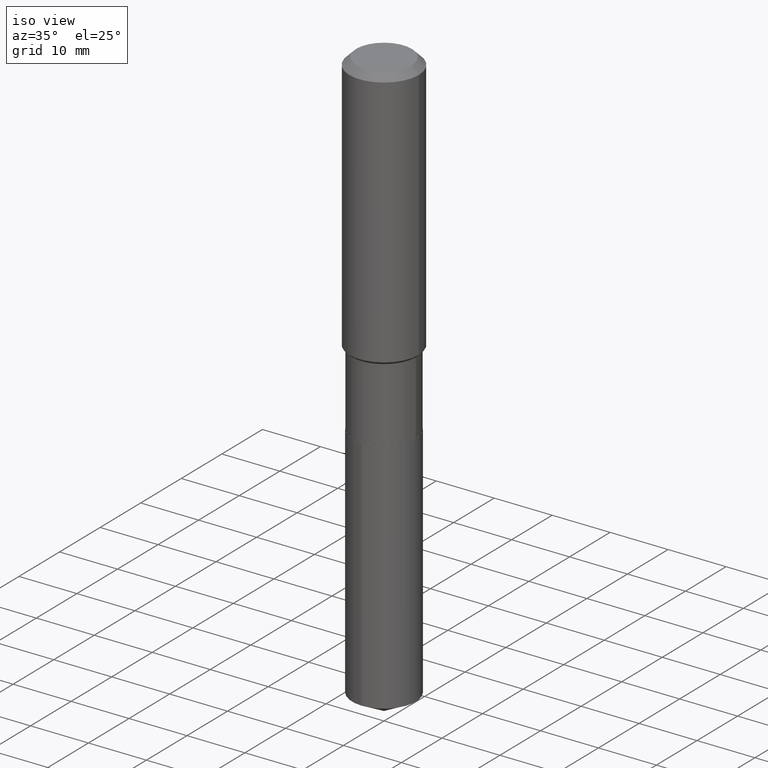
[diagram: clean part render]
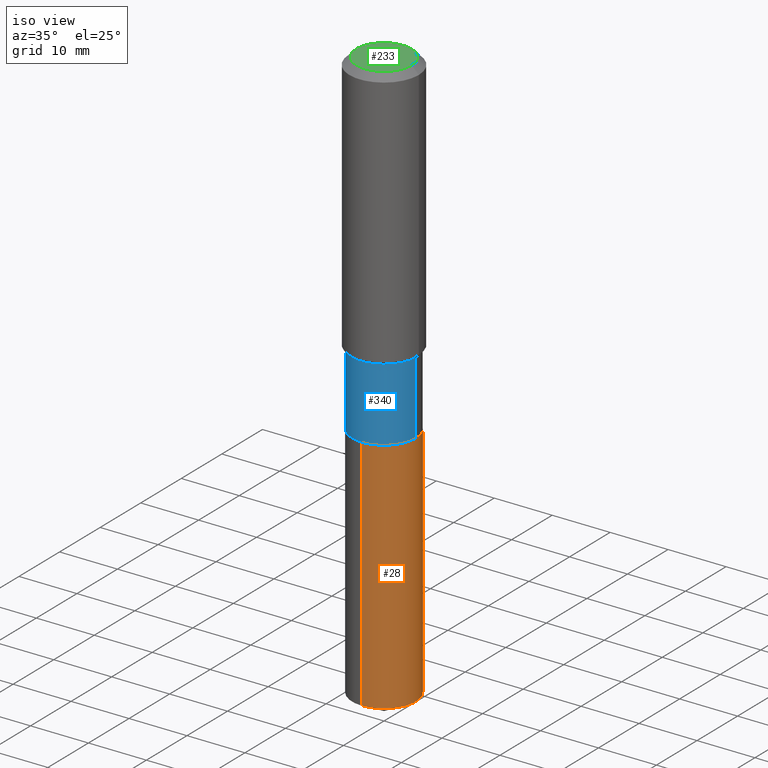
[diagram: same view with three faces highlighted in distinct colors, each labeled with its STEP entity id]
A machine part, iso view with three faces highlighted in distinct colors.
Their STEP definitions:

[orange] entity #28 — the highlighted cylindrical surface (partial cylindrical patch) has radius 5.5004 mm, axis along (-0, 0, 1).
#1 = LINE ( 'NONE', #334, #179 ) ;
#28 = ADVANCED_FACE ( 'NONE', ( #225 ), #273, .T. ) ;
#34 = ORIENTED_EDGE ( 'NONE', *, *, #190, .F. ) ;
#39 = VERTEX_POINT ( 'NONE', #91 ) ;
#46 = DIRECTION ( 'NONE',  ( -2.445558120015569435E-29, 3.491353436354538463E-15, 1.000000000000000000 ) ) ;
#61 = DIRECTION ( 'NONE',  ( -6.982962677686265133E-15, -1.000000000000000000, 2.523064413451178124E-15 ) ) ;
#79 = ORIENTED_EDGE ( 'NONE', *, *, #427, .F. ) ;
#87 = CARTESIAN_POINT ( 'NONE',  ( 5.583983472043140562E-29, -7.972448489114438042E-15, -2.283399999999999874 ) ) ;
#91 = CARTESIAN_POINT ( 'NONE',  ( -1.512160567852865370E-15, -0.2165500000000135927, -3.900558322573707493 ) ) ;
#99 = DIRECTION ( 'NONE',  ( -6.982962677686265133E-15, -1.000000000000000000, 3.784596620176766988E-15 ) ) ;
#131 = CARTESIAN_POINT ( 'NONE',  ( 9.538838139164029954E-29, -1.361851975576149405E-14, -3.900558322573707937 ) ) ;
#135 = CARTESIAN_POINT ( 'NONE',  ( 5.583983472043140562E-29, -7.972448489114438042E-15, -2.283399999999999874 ) ) ;
#139 = VERTEX_POINT ( 'NONE', #222 ) ;
#149 = VERTEX_POINT ( 'NONE', #360 ) ;
#162 = EDGE_CURVE ( 'NONE', #39, #139, #242, .T. ) ;
#174 = DIRECTION ( 'NONE',  ( -2.445558120015569435E-29, 3.491353436354538463E-15, 1.000000000000000000 ) ) ;
#179 = VECTOR ( 'NONE', #184, 39.37007874015748143 ) ;
#182 = EDGE_CURVE ( 'NONE', #139, #299, #474, .T. ) ;
#184 = DIRECTION ( 'NONE',  ( -2.445558120015569435E-29, 3.491353436354538463E-15, 1.000000000000000000 ) ) ;
#190 = EDGE_CURVE ( 'NONE', #149, #299, #453, .T. ) ;
#207 = DIRECTION ( 'NONE',  ( -6.982962677686265133E-15, -1.000000000000000000, 3.784596620176766988E-15 ) ) ;
#222 = CARTESIAN_POINT ( 'NONE',  ( 1.538680294288591957E-15, 0.2165499999999863368, -3.900558322573708381 ) ) ;
#225 = FACE_OUTER_BOUND ( 'NONE', #337, .T. ) ;
#235 = AXIS2_PLACEMENT_3D ( 'NONE', #135, #471, #99 ) ;
#242 = CIRCLE ( 'NONE', #370, 0.2165500000000000203 ) ;
#253 = CARTESIAN_POINT ( 'NONE',  ( 1.538680294288552514E-15, 0.2165499999999920544, -2.283400000000000762 ) ) ;
#260 = CARTESIAN_POINT ( 'NONE',  ( 1.538680294288592549E-15, 0.2165499999999920544, -2.283400000000000762 ) ) ;
#273 = CYLINDRICAL_SURFACE ( 'NONE', #485, 0.2165500000000000203 ) ;
#299 = VERTEX_POINT ( 'NONE', #260 ) ;
#323 = ORIENTED_EDGE ( 'NONE', *, *, #182, .T. ) ;
#334 = CARTESIAN_POINT ( 'NONE',  ( -1.512160567852905011E-15, -0.2165500000000079583, -2.283399999999998986 ) ) ;
#335 = VECTOR ( 'NONE', #174, 39.37007874015748143 ) ;
#337 = EDGE_LOOP ( 'NONE', ( #472, #323, #34, #79 ) ) ;
#360 = CARTESIAN_POINT ( 'NONE',  ( -1.512160567852905011E-15, -0.2165500000000079583, -2.283399999999998986 ) ) ;
#370 = AXIS2_PLACEMENT_3D ( 'NONE', #131, #438, #61 ) ;
#427 = EDGE_CURVE ( 'NONE', #39, #149, #1, .T. ) ;
#438 = DIRECTION ( 'NONE',  ( -2.445558120015569435E-29, 3.491353436354538463E-15, 1.000000000000000000 ) ) ;
#453 = CIRCLE ( 'NONE', #235, 0.2165500000000000203 ) ;
#471 = DIRECTION ( 'NONE',  ( -2.445558120015569435E-29, 3.491353436354538463E-15, 1.000000000000000000 ) ) ;
#472 = ORIENTED_EDGE ( 'NONE', *, *, #162, .T. ) ;
#474 = LINE ( 'NONE', #253, #335 ) ;
#485 = AXIS2_PLACEMENT_3D ( 'NONE', #87, #46, #207 ) ;

[blue] entity #340 — the highlighted cylindrical surface (partial cylindrical patch) has radius 5.5004 mm, axis along (-0, 0, 1).
#6 = CYLINDRICAL_SURFACE ( 'NONE', #468, 0.2165499999999999647 ) ;
#20 = VERTEX_POINT ( 'NONE', #115 ) ;
#29 = LINE ( 'NONE', #150, #60 ) ;
#41 = FACE_OUTER_BOUND ( 'NONE', #289, .T. ) ;
#42 = ORIENTED_EDGE ( 'NONE', *, *, #83, .T. ) ;
#57 = CARTESIAN_POINT ( 'NONE',  ( 0.2165500000000000203, -9.482863316297978150E-15, -2.282900000000000151 ) ) ;
#58 = VERTEX_POINT ( 'NONE', #57 ) ;
#60 = VECTOR ( 'NONE', #230, 39.37007874015748143 ) ;
#63 = EDGE_CURVE ( 'NONE', #20, #58, #429, .T. ) ;
#70 = CARTESIAN_POINT ( 'NONE',  ( 0.2165499999999999647, -1.512160567852960823E-15, 1.055936080798609895E-29 ) ) ;
#83 = EDGE_CURVE ( 'NONE', #58, #154, #101, .T. ) ;
#98 = CARTESIAN_POINT ( 'NONE',  ( 5.582760737640048882E-29, -7.970702748445017327E-15, -2.282900000000000151 ) ) ;
#101 = LINE ( 'NONE', #70, #248 ) ;
#109 = VERTEX_POINT ( 'NONE', #359 ) ;
#114 = CIRCLE ( 'NONE', #293, 0.2165499999999999370 ) ;
#115 = CARTESIAN_POINT ( 'NONE',  ( -0.2165500000000000203, -5.563341897052346134E-15, -2.282900000000000151 ) ) ;
#145 = ORIENTED_EDGE ( 'NONE', *, *, #63, .T. ) ;
#150 = CARTESIAN_POINT ( 'NONE',  ( -0.2165499999999999647, 1.538680294288496702E-15, -1.065195393794699783E-29 ) ) ;
#154 = VERTEX_POINT ( 'NONE', #484 ) ;
#177 = ORIENTED_EDGE ( 'NONE', *, *, #397, .F. ) ;
#189 = ORIENTED_EDGE ( 'NONE', *, *, #279, .F. ) ;
#230 = DIRECTION ( 'NONE',  ( -2.445468806185136877E-29, 3.491481338843145188E-15, 1.000000000000000000 ) ) ;
#248 = VECTOR ( 'NONE', #399, 39.37007874015748143 ) ;
#271 = DIRECTION ( 'NONE',  ( -2.445468806185136597E-29, 3.491481338843145583E-15, 1.000000000000000000 ) ) ;
#279 = EDGE_CURVE ( 'NONE', #109, #154, #114, .T. ) ;
#289 = EDGE_LOOP ( 'NONE', ( #177, #145, #42, #189 ) ) ;
#293 = AXIS2_PLACEMENT_3D ( 'NONE', #456, #271, #336 ) ;
#320 = DIRECTION ( 'NONE',  ( 1.000000000000000000, -6.982962677686264344E-15, 0.000000000000000000 ) ) ;
#322 = DIRECTION ( 'NONE',  ( -2.445468806185136597E-29, 3.491481338843145583E-15, 1.000000000000000000 ) ) ;
#336 = DIRECTION ( 'NONE',  ( 1.000000000000000000, -6.982962677686266711E-15, 0.000000000000000000 ) ) ;
#340 = ADVANCED_FACE ( 'NONE', ( #41 ), #6, .T. ) ;
#349 = DIRECTION ( 'NONE',  ( 1.000000000000000000, -6.982962677686266711E-15, 4.876176775795936353E-29 ) ) ;
#359 = CARTESIAN_POINT ( 'NONE',  ( -0.2165499999999999370, -5.563341897052346134E-15, -1.785299999999999887 ) ) ;
#380 = AXIS2_PLACEMENT_3D ( 'NONE', #98, #322, #320 ) ;
#397 = EDGE_CURVE ( 'NONE', #20, #109, #29, .T. ) ;
#399 = DIRECTION ( 'NONE',  ( -2.445468806185136877E-29, 3.491481338843145188E-15, 1.000000000000000000 ) ) ;
#428 = DIRECTION ( 'NONE',  ( -2.445468806185136597E-29, 3.491481338843145583E-15, 1.000000000000000000 ) ) ;
#429 = CIRCLE ( 'NONE', #380, 0.2165500000000000203 ) ;
#456 = CARTESIAN_POINT ( 'NONE',  ( 4.365895459682324685E-29, -6.233341634236667556E-15, -1.785299999999999887 ) ) ;
#459 = CARTESIAN_POINT ( 'NONE',  ( 0.000000000000000000, 0.000000000000000000, 0.000000000000000000 ) ) ;
#468 = AXIS2_PLACEMENT_3D ( 'NONE', #459, #428, #349 ) ;
#484 = CARTESIAN_POINT ( 'NONE',  ( 0.2165499999999999370, -7.745502202089628379E-15, -1.785299999999999887 ) ) ;

[green] entity #233 — the highlighted planar face has unit normal (0, -0, -1).
#11 = CIRCLE ( 'NONE', #54, 0.1889600000000000168 ) ;
#22 = EDGE_CURVE ( 'NONE', #409, #284, #159, .T. ) ;
#35 = CARTESIAN_POINT ( 'NONE',  ( -0.1889600000000000168, 1.401969416799070942E-15, 3.855188123706346622E-18 ) ) ;
#36 = DIRECTION ( 'NONE',  ( -1.000000000000000000, 6.982962677686265922E-15, -4.876176775795935793E-29 ) ) ;
#54 = AXIS2_PLACEMENT_3D ( 'NONE', #191, #86, #192 ) ;
#86 = DIRECTION ( 'NONE',  ( -2.445468806185136597E-29, 3.491481338843145583E-15, 1.000000000000000000 ) ) ;
#111 = ORIENTED_EDGE ( 'NONE', *, *, #22, .T. ) ;
#118 = CARTESIAN_POINT ( 'NONE',  ( -9.427742298522546243E-47, 1.346031739168365344E-32, 3.855188123715862256E-18 ) ) ;
#136 = EDGE_LOOP ( 'NONE', ( #111, #400 ) ) ;
#148 = DIRECTION ( 'NONE',  ( 2.438088387897960049E-29, -3.491481338843145188E-15, -1.000000000000000000 ) ) ;
#159 = CIRCLE ( 'NONE', #452, 0.1889600000000000168 ) ;
#191 = CARTESIAN_POINT ( 'NONE',  ( -9.427742298522546243E-47, 1.346031739168365344E-32, 3.855188123715862256E-18 ) ) ;
#192 = DIRECTION ( 'NONE',  ( 1.000000000000000000, -6.982962677686266711E-15, 4.876185090822587894E-29 ) ) ;
#193 = PLANE ( 'NONE',  #475 ) ;
#233 = ADVANCED_FACE ( 'NONE', ( #372 ), #193, .F. ) ;
#272 = DIRECTION ( 'NONE',  ( 1.000000000000000000, -6.982962677686266711E-15, 4.876185090822587894E-29 ) ) ;
#284 = VERTEX_POINT ( 'NONE', #449 ) ;
#297 = EDGE_CURVE ( 'NONE', #284, #409, #11, .T. ) ;
#298 = CARTESIAN_POINT ( 'NONE',  ( -4.713871149261273121E-47, 6.730158695841826722E-33, 1.927594061857931128E-18 ) ) ;
#372 = FACE_OUTER_BOUND ( 'NONE', #136, .T. ) ;
#400 = ORIENTED_EDGE ( 'NONE', *, *, #297, .T. ) ;
#409 = VERTEX_POINT ( 'NONE', #35 ) ;
#415 = DIRECTION ( 'NONE',  ( -2.445468806185136597E-29, 3.491481338843145583E-15, 1.000000000000000000 ) ) ;
#449 = CARTESIAN_POINT ( 'NONE',  ( 0.1889600000000000168, -1.540873453589747738E-15, 3.855188123725863225E-18 ) ) ;
#452 = AXIS2_PLACEMENT_3D ( 'NONE', #118, #415, #272 ) ;
#475 = AXIS2_PLACEMENT_3D ( 'NONE', #298, #148, #36 ) ;